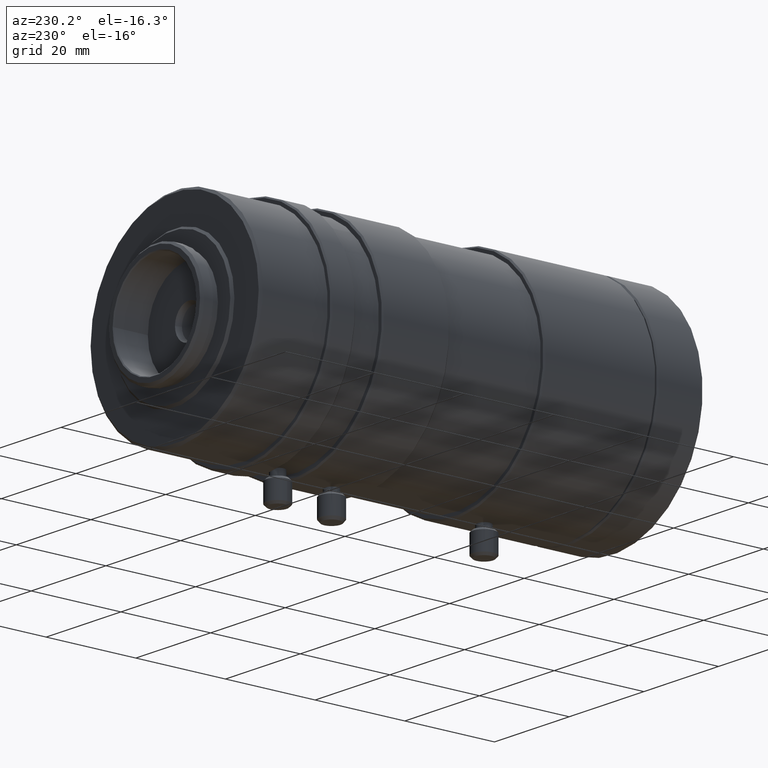
[diagram: clean part render]
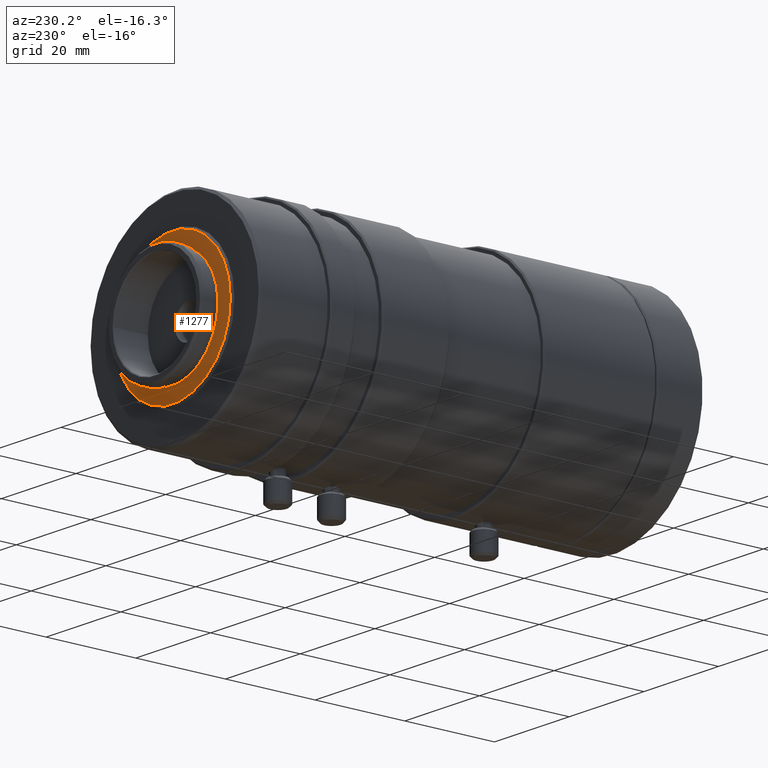
[diagram: same view with one face highlighted and labeled with its STEP entity id]
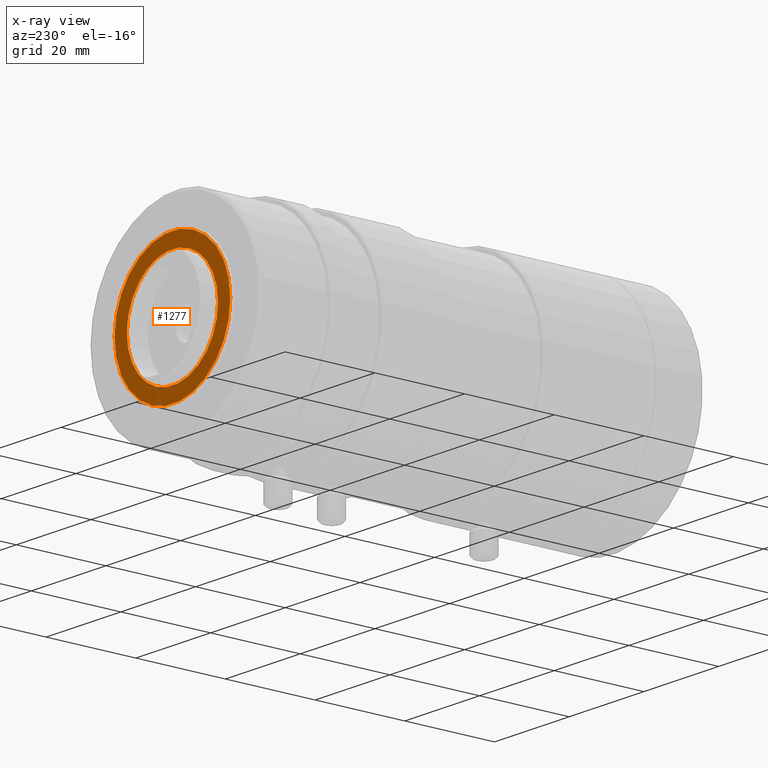
[diagram: x-ray of the same camera — body ghosted, the highlighted face saturated]
A machine part, auxiliary view. The second image highlights one B-rep face of the part: STEP entity #1277.
The next image is the same camera in x-ray: the body ghosted, the highlighted face saturated — about 0% of this face is hidden behind the body in this view.
In plain terms, the highlighted planar face has unit normal (-0, -1, 0).
Its self-contained STEP definition (entity closure, byte-faithful):
#43=PLANE('',#1409);
#179=ORIENTED_EDGE('',*,*,#265,.T.);
#180=ORIENTED_EDGE('',*,*,#264,.F.);
#264=EDGE_CURVE('',#334,#334,#401,.T.);
#265=EDGE_CURVE('',#335,#335,#402,.T.);
#334=VERTEX_POINT('',#1917);
#335=VERTEX_POINT('',#1920);
#401=CIRCLE('',#1408,15.4999999633974);
#402=CIRCLE('',#1410,12.1999969482422);
#526=EDGE_LOOP('',(#179));
#527=EDGE_LOOP('',(#180));
#666=FACE_BOUND('',#526,.T.);
#667=FACE_BOUND('',#527,.T.);
#1277=ADVANCED_FACE('',(#666,#667),#43,.F.);
#1408=AXIS2_PLACEMENT_3D('',#1916,#1660,#1661);
#1409=AXIS2_PLACEMENT_3D('',#1918,#1662,#1663);
#1410=AXIS2_PLACEMENT_3D('',#1919,#1664,#1665);
#1660=DIRECTION('',(-6.12303176911189E-17,-1.,1.69202101686471E-17));
#1661=DIRECTION('',(1.,-6.12303176911189E-17,0.));
#1662=DIRECTION('',(-6.12303176911189E-17,-1.,1.69202101686471E-17));
#1663=DIRECTION('',(1.,-6.12303176911189E-17,0.));
#1664=DIRECTION('',(-6.12303176911189E-17,-1.,1.69202101686471E-17));
#1665=DIRECTION('',(1.,-6.12303176911189E-17,0.));
#1916=CARTESIAN_POINT('',(6.03118629257521E-15,98.5,-1.66664070161174E-15));
#1917=CARTESIAN_POINT('',(15.4999999633974,98.5,-1.66664070161174E-15));
#1918=CARTESIAN_POINT('',(6.03118629257521E-15,98.5,15.4999999633974));
#1919=CARTESIAN_POINT('',(6.03118629257521E-15,98.5,-1.66664070161174E-15));
#1920=CARTESIAN_POINT('',(12.1999969482422,98.5,-1.66664070161174E-15));